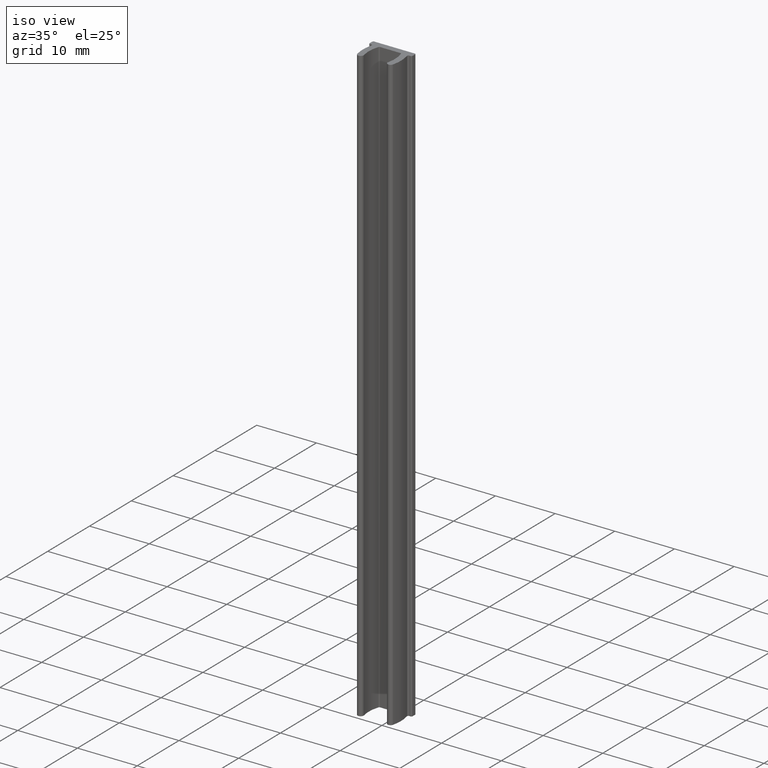
[diagram: clean part render]
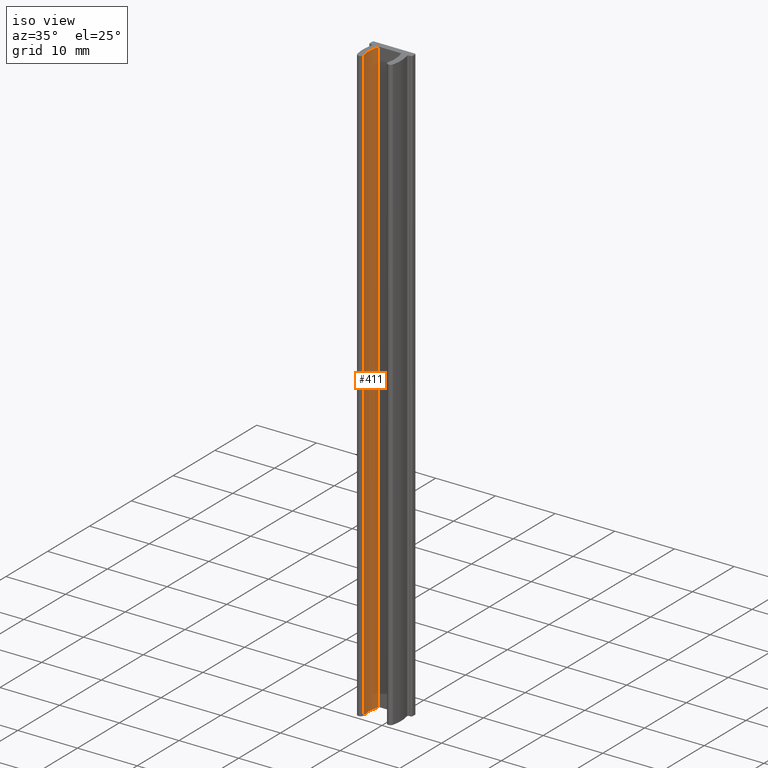
[diagram: same view with one face highlighted and labeled with its STEP entity id]
A machine part, iso view. The second image highlights one B-rep face of the part: STEP entity #411.
In plain terms, the highlighted cylindrical surface (partial cylindrical patch) has radius 5.8 mm, axis along (0, 0, 1).
Its self-contained STEP definition (entity closure, byte-faithful):
#41=FACE_OUTER_BOUND('',#63,.T.);
#63=EDGE_LOOP('',(#347,#348,#349,#350));
#71=LINE('',#643,#103);
#97=LINE('',#735,#129);
#103=VECTOR('',#509,10.);
#129=VECTOR('',#607,10.);
#146=CIRCLE('',#461,5.8);
#157=CIRCLE('',#480,5.8);
#165=VERTEX_POINT('',#636);
#168=VERTEX_POINT('',#641);
#187=VERTEX_POINT('',#694);
#198=VERTEX_POINT('',#734);
#209=EDGE_CURVE('',#168,#165,#71,.T.);
#235=EDGE_CURVE('',#187,#168,#146,.T.);
#255=EDGE_CURVE('',#198,#187,#97,.T.);
#256=EDGE_CURVE('',#165,#198,#157,.T.);
#347=ORIENTED_EDGE('',*,*,#209,.F.);
#348=ORIENTED_EDGE('',*,*,#235,.F.);
#349=ORIENTED_EDGE('',*,*,#255,.F.);
#350=ORIENTED_EDGE('',*,*,#256,.F.);
#391=CYLINDRICAL_SURFACE('',#479,5.8);
#411=ADVANCED_FACE('',(#41),#391,.F.);
#461=AXIS2_PLACEMENT_3D('',#696,#560,#561);
#479=AXIS2_PLACEMENT_3D('',#733,#605,#606);
#480=AXIS2_PLACEMENT_3D('',#736,#608,#609);
#509=DIRECTION('',(0.,0.,-1.));
#560=DIRECTION('center_axis',(0.,0.,-1.));
#561=DIRECTION('ref_axis',(-0.938666040608014,0.344827586206897,0.));
#605=DIRECTION('center_axis',(0.,0.,1.));
#606=DIRECTION('ref_axis',(-0.938666040608014,0.344827586206897,0.));
#607=DIRECTION('',(0.,0.,1.));
#608=DIRECTION('center_axis',(0.,0.,1.));
#609=DIRECTION('ref_axis',(-0.938666040608014,0.344827586206897,0.));
#636=CARTESIAN_POINT('',(-1.89221619890461,1.86428571428571,0.));
#641=CARTESIAN_POINT('',(-1.89221619890461,1.86428571428571,100.));
#643=CARTESIAN_POINT('',(-1.89221619890461,1.86428571428571,0.));
#694=CARTESIAN_POINT('',(-2.03320251025489,-1.38095238095238,100.));
#696=CARTESIAN_POINT('Origin',(3.6,-5.51884416408469E-23,100.));
#733=CARTESIAN_POINT('Origin',(3.6,-5.51884416408469E-23,0.));
#734=CARTESIAN_POINT('',(-2.03320251025489,-1.38095238095238,0.));
#735=CARTESIAN_POINT('',(-2.03320251025489,-1.38095238095238,0.));
#736=CARTESIAN_POINT('Origin',(3.6,-5.51884416408469E-23,0.));